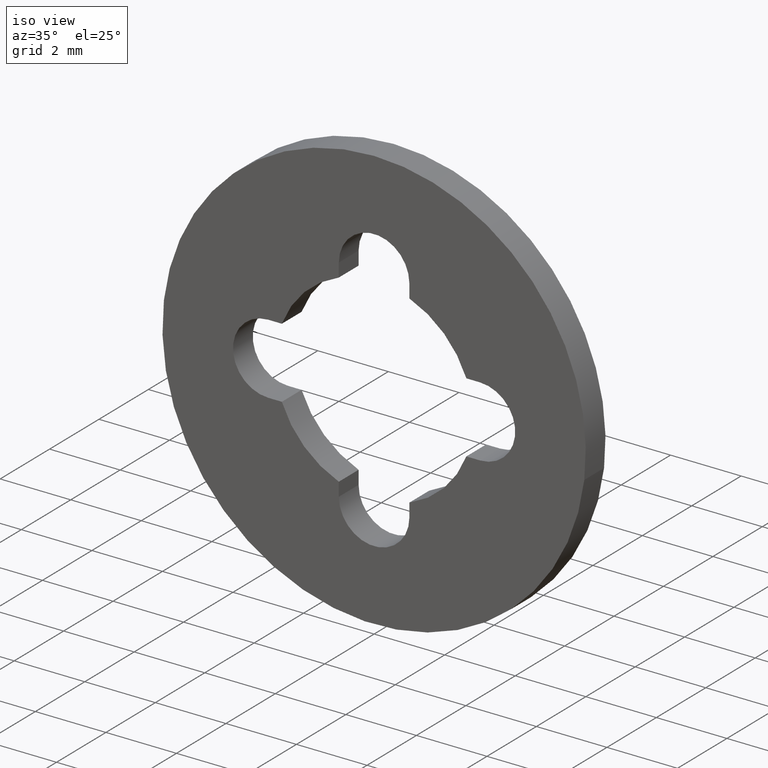
[diagram: clean part render]
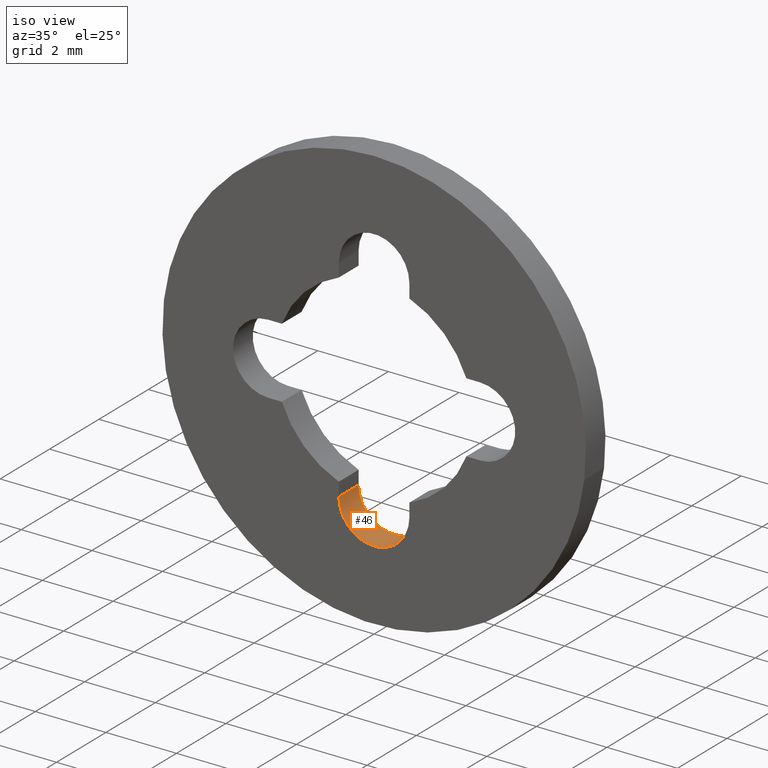
[diagram: same view with one face highlighted and labeled with its STEP entity id]
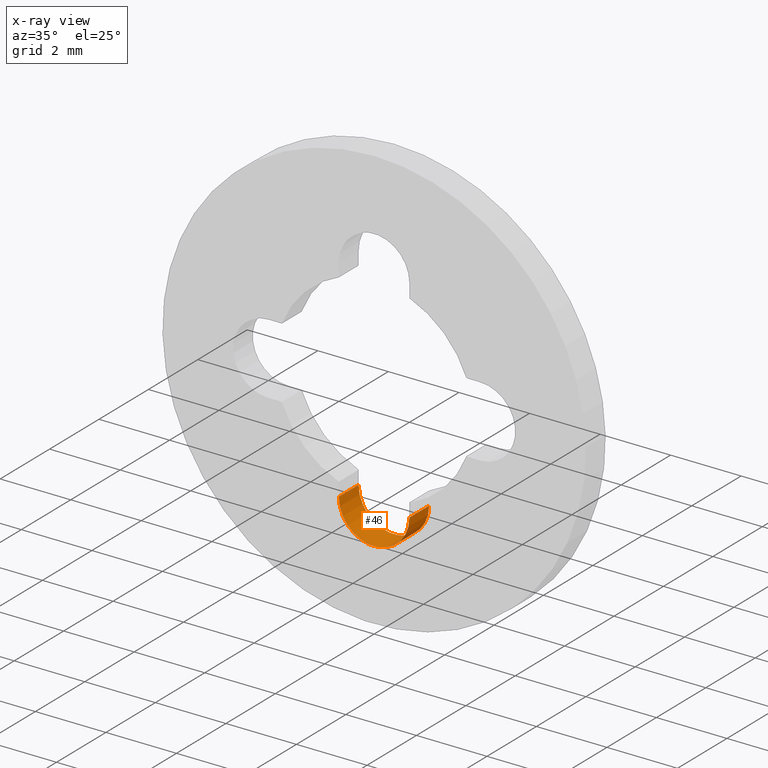
[diagram: x-ray of the same camera — body ghosted, the highlighted face saturated]
A machine part, iso view. The second image highlights one B-rep face of the part: STEP entity #46.
The next image is the same camera in x-ray: the body ghosted, the highlighted face saturated — about 0% of this face is hidden behind the body in this view.
In plain terms, the highlighted cylindrical surface (partial cylindrical patch) has radius 1 mm, axis along (0, -1, -0).
Its self-contained STEP definition (entity closure, byte-faithful):
#46=ADVANCED_FACE('',(#123),#122,.F.);
#122=CYLINDRICAL_SURFACE('',#297,1.00000000000E+00);
#123=FACE_OUTER_BOUND('',#298,.T.);
#294=CARTESIAN_POINT('',(-4.52979667664E-16,-2.05000000000E-02,-3.00000000000E+00));
#295=DIRECTION('',(0.00000000000E+00,-1.00000000000E+00,-0.00000000000E+00));
#296=DIRECTION('',(8.72653549838E-03,0.00000000000E+00,9.99961923064E-01));
#297=AXIS2_PLACEMENT_3D('',#294,#295,#296);
#298=EDGE_LOOP('',(#418,#419,#420,#421));
#418=ORIENTED_EDGE('',*,*,#503,.T.);
#419=ORIENTED_EDGE('',*,*,#518,.F.);
#420=ORIENTED_EDGE('',*,*,#491,.F.);
#421=ORIENTED_EDGE('',*,*,#519,.T.);
#491=EDGE_CURVE('',#631,#638,#639,.T.);
#503=EDGE_CURVE('',#722,#715,#723,.T.);
#518=EDGE_CURVE('',#638,#715,#822,.T.);
#519=EDGE_CURVE('',#631,#722,#828,.T.);
#631=VERTEX_POINT('',#972);
#638=VERTEX_POINT('',#976);
#639=CIRCLE('',#980,1.00000000000E+00);
#715=VERTEX_POINT('',#1027);
#722=VERTEX_POINT('',#1031);
#723=CIRCLE('',#1035,1.00000000000E+00);
#822=LINE('',#1092,#1093);
#828=LINE('',#1095,#1096);
#972=CARTESIAN_POINT('',(-1.00000000000E+00,8.00000000000E-01,-3.00000000000E+00));
#976=CARTESIAN_POINT('',(1.00000000000E+00,8.00000000000E-01,-2.99999982547E+00));
#977=CARTESIAN_POINT('',(9.11423602685E-15,8.00000000000E-01,-3.00000000000E+00));
#978=DIRECTION('',(3.28692027281E-31,-1.00000000000E+00,3.70074322896E-17));
#979=DIRECTION('',(-1.00000000000E+00,4.53195367205E-33,9.00424483238E-15));
#980=AXIS2_PLACEMENT_3D('',#977,#978,#979);
#1027=CARTESIAN_POINT('',(1.00000000000E+00,0.00000000000E+00,-2.99999982547E+00));
#1031=CARTESIAN_POINT('',(-1.00000000000E+00,0.00000000000E+00,-3.00000000000E+00));
#1032=CARTESIAN_POINT('',(9.11423602685E-15,0.00000000000E+00,-3.00000000000E+00));
#1033=DIRECTION('',(0.00000000000E+00,-1.00000000000E+00,0.00000000000E+00));
#1034=DIRECTION('',(-1.00000000000E+00,0.00000000000E+00,9.00424483238E-15));
#1035=AXIS2_PLACEMENT_3D('',#1032,#1033,#1034);
#1092=CARTESIAN_POINT('',(1.00000000000E+00,8.00000000000E-01,-2.99999982547E+00));
#1093=VECTOR('',#1094,8.00000000000E-01);
#1094=DIRECTION('',(0.00000000000E+00,-1.00000000000E+00,0.00000000000E+00));
#1095=CARTESIAN_POINT('',(-1.00000000000E+00,8.00000000000E-01,-3.00000000000E+00));
#1096=VECTOR('',#1097,8.00000000000E-01);
#1097=DIRECTION('',(0.00000000000E+00,-1.00000000000E+00,0.00000000000E+00));